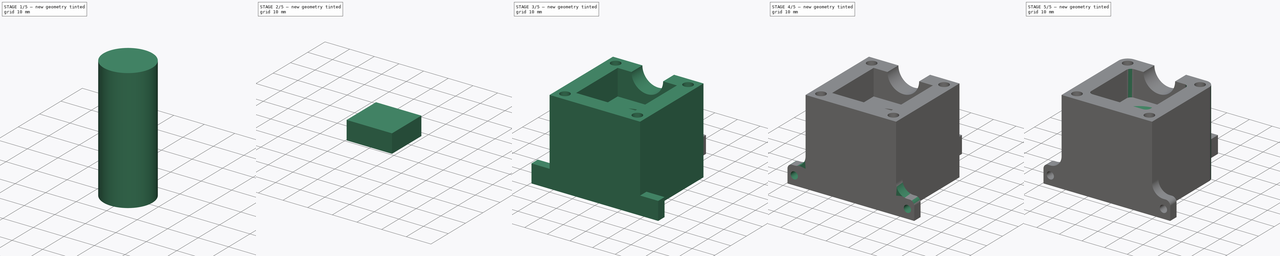
[diagram: build sequence overview — one tinted view per stage of 5, left to right]
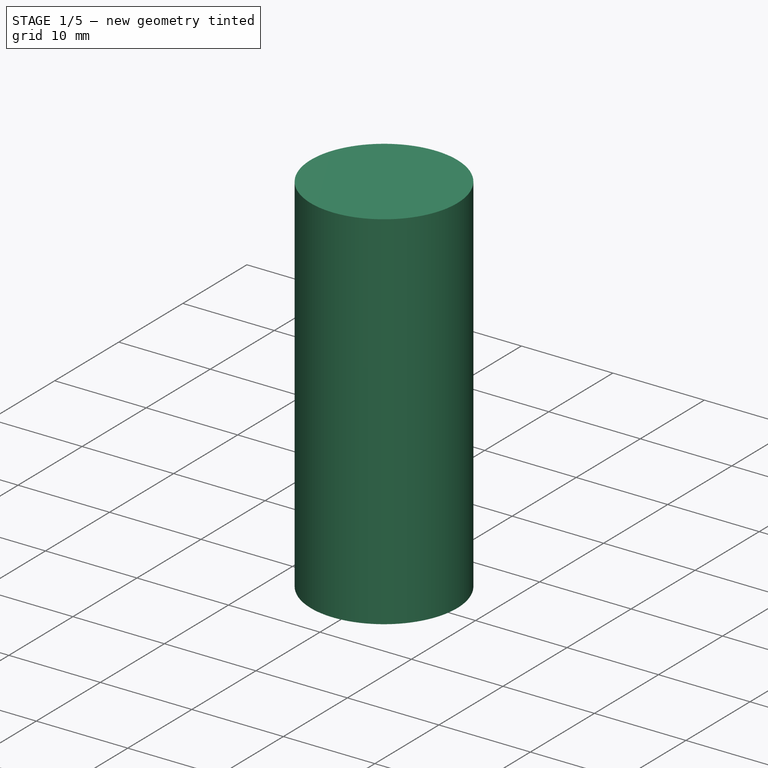
[diagram: stage 1 of 5 — iso view after this stage's code; geometry added in this stage tinted green]
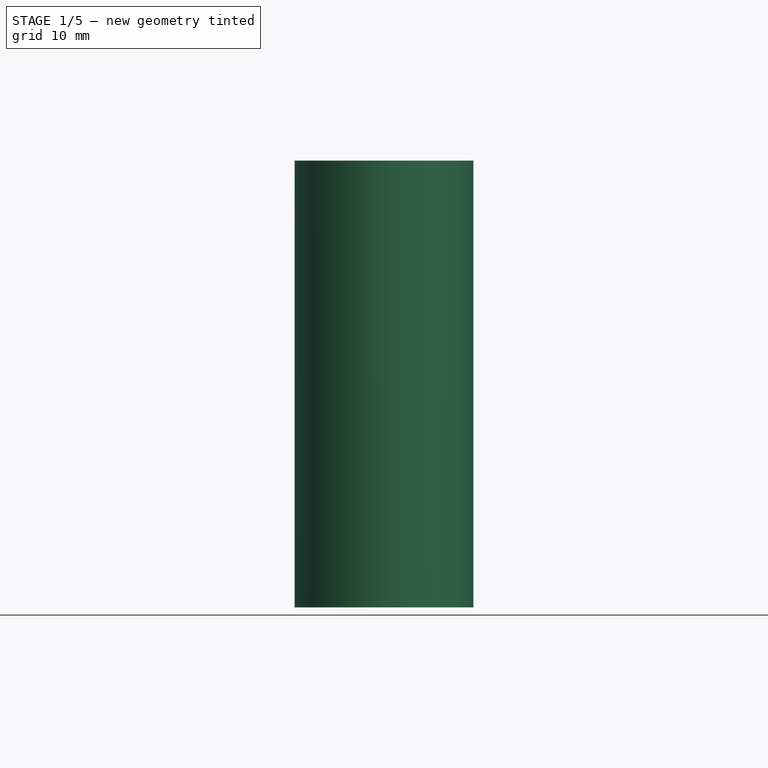
[diagram: stage 1 of 5 — front view after this stage's code; geometry added in this stage tinted green]
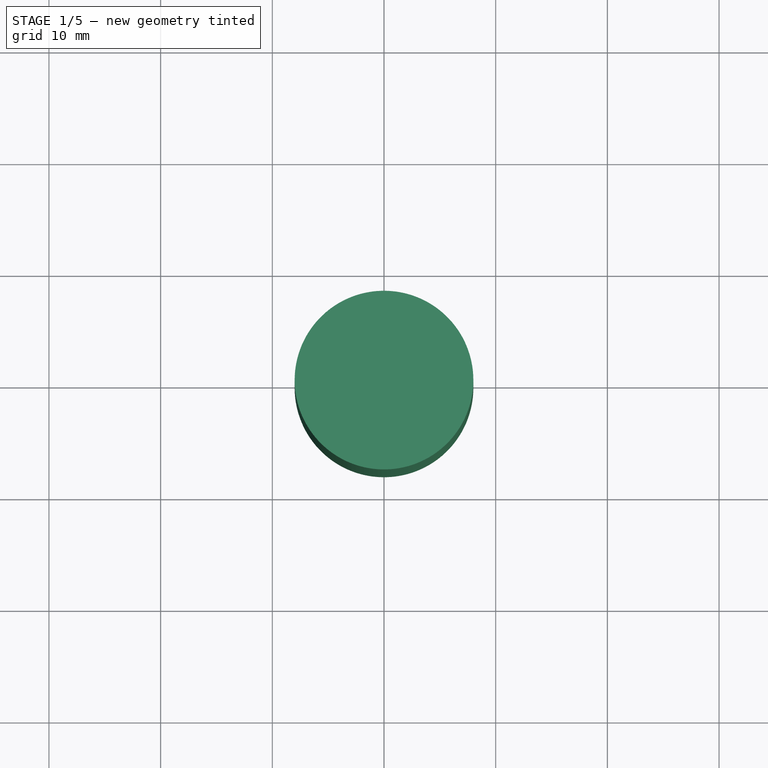
[diagram: stage 1 of 5 — top view after this stage's code; geometry added in this stage tinted green]
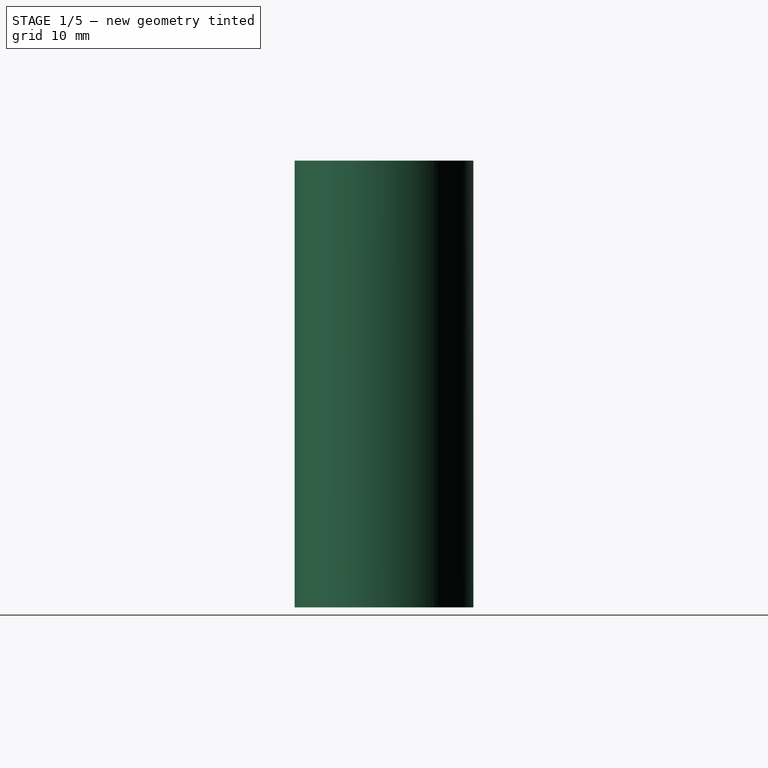
[diagram: stage 1 of 5 — right view after this stage's code; geometry added in this stage tinted green]
FCSTD DOCUMENT  (FreeCAD 0.18R4 (GitTag))
Label: housing_right
License: All rights reserved
LicenseURL: http://en.wikipedia.org/wiki/All_rights_reserved
objects: Sketcher::SketchObject×8, Part::Extrusion×8, Part::Cut×5, Part::Fillet×5, Part::MultiFuse×2, Part::Chamfer×1, Part::Feature×1
note: 30 computed .brp shape members not serialized (recipe doc carries the construction recipe); baked Part::Feature solids carry a one-line shape summary decoded from their .brp

FEATURE [Sketcher::SketchObject] Sketch
  sketch-geometry (8):
    g0: LineSegment StartX=-20 StartY=-20 StartZ=0 EndX=20 EndY=-20 EndZ=0
    g1: LineSegment StartX=20 StartY=-20 StartZ=0 EndX=20 EndY=20 EndZ=0
    g2: LineSegment StartX=20 StartY=20 StartZ=0 EndX=-20 EndY=20 EndZ=0
    g3: LineSegment StartX=-20 StartY=20 StartZ=0 EndX=-20 EndY=-20 EndZ=0
    g4: Circle CenterX=-16 CenterY=16 CenterZ=0 NormalX=0 NormalY=0 NormalZ=1 AngleXU=0 Radius=2.1
    g5: Circle CenterX=16 CenterY=16 CenterZ=0 NormalX=0 NormalY=0 NormalZ=1 AngleXU=0 Radius=2.1
    g6: Circle CenterX=16 CenterY=-16 CenterZ=0 NormalX=0 NormalY=0 NormalZ=1 AngleXU=0 Radius=2.1
    g7: Circle CenterX=-16 CenterY=-16 CenterZ=0 NormalX=0 NormalY=0 NormalZ=1 AngleXU=0 Radius=2.1
  constraints (24):
    c: Coincident(g0,g1)
    c: Coincident(g1,g2)
    c: Coincident(g2,g3)
    c: Coincident(g3,g0)
    c: Horizontal(g0)
    c: Horizontal(g2)
    c: Vertical(g1)
    c: Vertical(g3)
    c: DistanceX(g2,g2) = 40
    c: DistanceX(g2,g-1) = 20
    c: DistanceY(g3,g3) = 40
    c: DistanceY(g-1,g2) = 20
    c: Radius(g4) = 2.1
    c: Radius(g5) = 2.1
    c: Radius(g7) = 2.1
    c: Radius(g6) = 2.1
    c: DistanceX(g5,g1) = 4
    c: DistanceX(g6,g0) = 4
    c: DistanceX(g0,g7) = 4
    c: DistanceX(g2,g4) = 4
    c: DistanceY(g4,g2) = 4
    c: DistanceY(g5,g1) = 4
    c: DistanceY(g0,g6) = 4
    c: DistanceY(g0,g7) = 4
FEATURE [Part::Extrusion] Extrude
  Base = -> Sketch
  Dir = (0,0,1)
  DirMode = 2
  FaceMakerClass = Part::FaceMakerBullseye
  LengthFwd = 37.5
  LengthRev = 0
  Solid = true
  Symmetric = false
FEATURE [Sketcher::SketchObject] Sketch001
  MapMode = 5
  Placement = pos=(0,0,37.5) rot=(0,0,1;0rad)
  Support = -> [Extrude]
  sketch-geometry (4):
    g0: LineSegment StartX=-13.1 StartY=-13.1 StartZ=0 EndX=13.1 EndY=-13.1 EndZ=0
    g1: LineSegment StartX=13.1 StartY=-13.1 StartZ=0 EndX=13.1 EndY=13.1 EndZ=0
    g2: LineSegment StartX=13.1 StartY=13.1 StartZ=0 EndX=-13.1 EndY=13.1 EndZ=0
    g3: LineSegment StartX=-13.1 StartY=13.1 StartZ=0 EndX=-13.1 EndY=-13.1 EndZ=0
  constraints (12):
    c: Coincident(g0,g1)
    c: Coincident(g1,g2)
    c: Coincident(g2,g3)
    c: Coincident(g3,g0)
    c: Horizontal(g0)
    c: Horizontal(g2)
    c: Vertical(g1)
    c: Vertical(g3)
    c: DistanceX(g2,g2) = 26.2
    c: DistanceX(g-1,g1) = 13.1
    c: DistanceY(g1,g1) = 26.2
    c: DistanceY(g0,g-1) = 13.1
FEATURE [Part::Extrusion] Extrude001
  Base = -> Sketch001
  Dir = (0,0,1)
  DirMode = 2
  FaceMakerClass = Part::FaceMakerBullseye
  LengthFwd = 11.4
  LengthRev = 0
  Reversed = true
  Solid = true
  Symmetric = false
FEATURE [Part::Cut] Cut
  Base = -> Extrude
  Tool = -> Extrude001
FEATURE [Sketcher::SketchObject] Sketch002
  MapMode = 5
  Placement = pos=(0,0,26.1) rot=(0,0,1;0rad)
  Support = -> [Cut]
  sketch-geometry (1):
    g0: Circle CenterX=0 CenterY=0 CenterZ=0 NormalX=0 NormalY=0 NormalZ=1 AngleXU=0 Radius=8
  constraints (2):
    c: Coincident(g0,g-1)
    c: Radius(g0) = 8
FEATURE [Part::Extrusion] Extrude002
  Base = -> Sketch002
  Dir = (0,0,1)
  DirMode = 2
  FaceMakerClass = Part::FaceMakerBullseye
  LengthFwd = 40
  LengthRev = 0
  Reversed = true
  Solid = true
  Symmetric = false
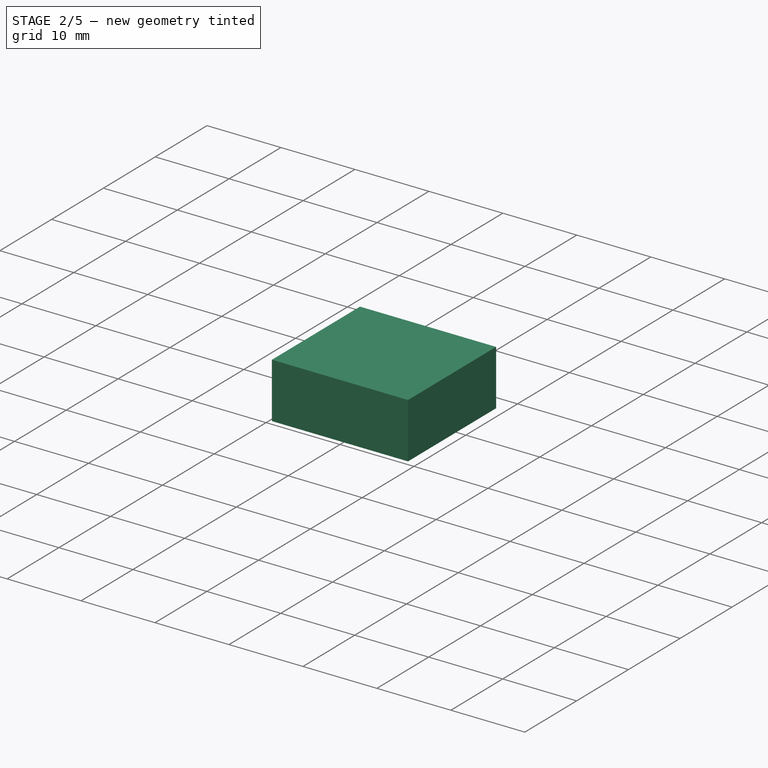
[diagram: stage 2 of 5 — iso view after this stage's code; geometry added in this stage tinted green]
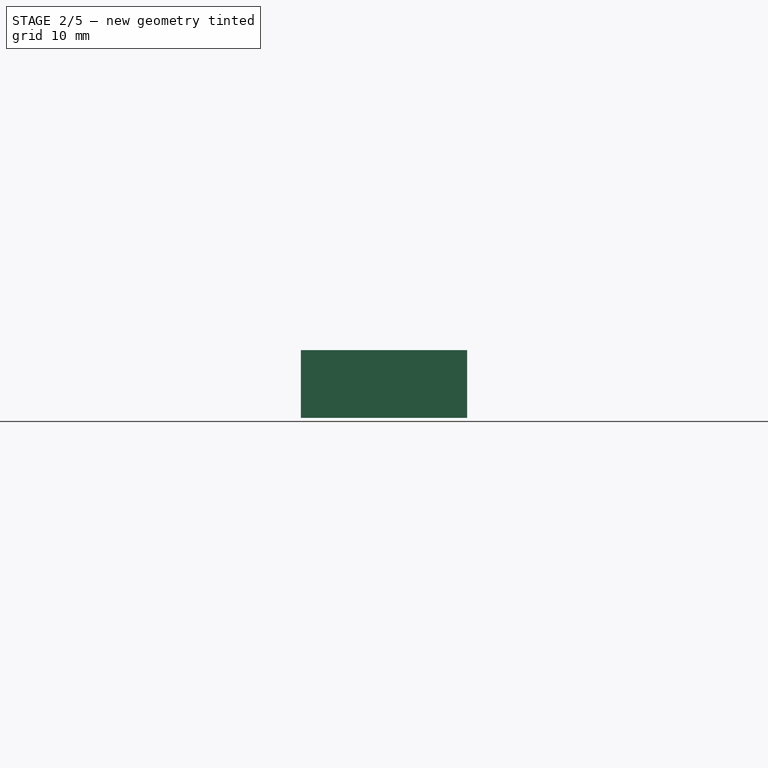
[diagram: stage 2 of 5 — front view after this stage's code; geometry added in this stage tinted green]
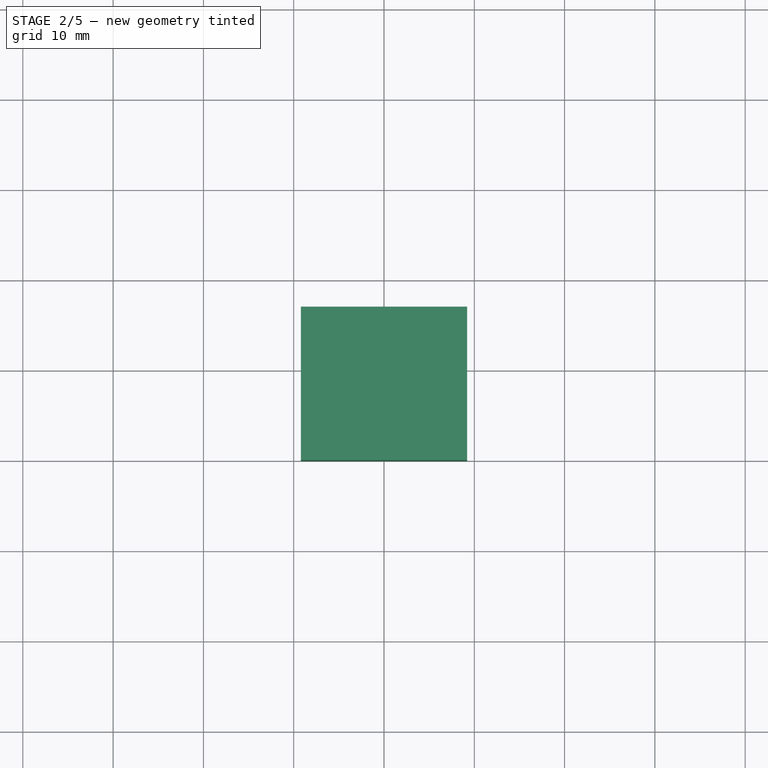
[diagram: stage 2 of 5 — top view after this stage's code; geometry added in this stage tinted green]
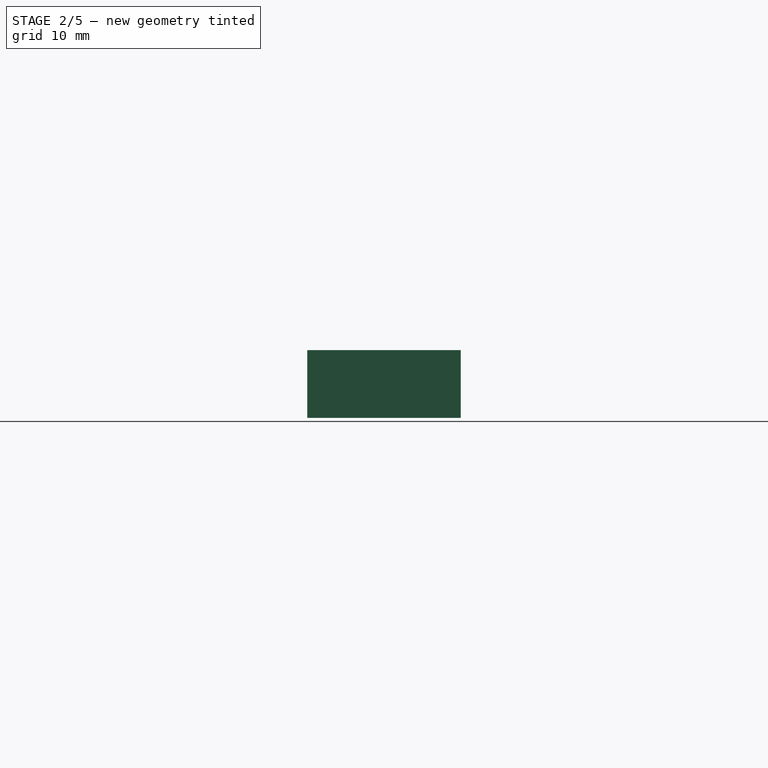
[diagram: stage 2 of 5 — right view after this stage's code; geometry added in this stage tinted green]
FEATURE [Part::Cut] Cut001
  Base = -> Cut
  Tool = -> Extrude002
FEATURE [Sketcher::SketchObject] Sketch003
  MapMode = 5
  Placement = pos=(0,20,0) rot=(0,0.707107,0.707107;3.14159rad)
  Support = -> [Cut001]
  sketch-geometry (1):
    g0: Circle CenterX=0 CenterY=37.5 CenterZ=0 NormalX=0 NormalY=0 NormalZ=1 AngleXU=0 Radius=7
  constraints (3):
    c: Radius(g0) = 7
    c: PointOnObject(g0,g-2)
    c: DistanceY(g-1,g0) = 37.5
FEATURE [Part::Extrusion] Extrude003
  Base = -> Sketch003
  Dir = (0,1,-2e-16)
  DirMode = 2
  FaceMakerClass = Part::FaceMakerBullseye
  LengthFwd = 10
  LengthRev = 0
  Reversed = true
  Solid = true
  Symmetric = false
FEATURE [Part::Cut] Cut002
  Base = -> Cut001
  Tool = -> Extrude003
FEATURE [Sketcher::SketchObject] Sketch004
  MapMode = 5
  Placement = pos=(0,0,0) rot=(1,0,0;3.14159rad)
  Support = -> [Cut002]
  sketch-geometry (4):
    g0: LineSegment StartX=-9.2 StartY=-20 StartZ=0 EndX=9.2 EndY=-20 EndZ=0
    g1: LineSegment StartX=9.2 StartY=-20 StartZ=0 EndX=9.2 EndY=-37 EndZ=0
    g2: LineSegment StartX=9.2 StartY=-37 StartZ=0 EndX=-9.2 EndY=-37 EndZ=0
    g3: LineSegment StartX=-9.2 StartY=-37 StartZ=0 EndX=-9.2 EndY=-20 EndZ=0
  constraints (12):
    c: Coincident(g0,g1)
    c: Coincident(g1,g2)
    c: Coincident(g2,g3)
    c: Coincident(g3,g0)
    c: Horizontal(g0)
    c: Horizontal(g2)
    c: Vertical(g1)
    c: Vertical(g3)
    c: DistanceY(g1,g1) = 17
    c: DistanceY(g0,g-1) = 20
    c: DistanceX(g2,g2) = 18.4
    c: DistanceX(g-1,g0) = 9.2
FEATURE [Part::Extrusion] Extrude004
  Base = -> Sketch004
  Dir = (0,0,-1)
  DirMode = 2
  FaceMakerClass = Part::FaceMakerBullseye
  LengthFwd = 7.5
  LengthRev = 0
  Reversed = true
  Solid = true
  Symmetric = false
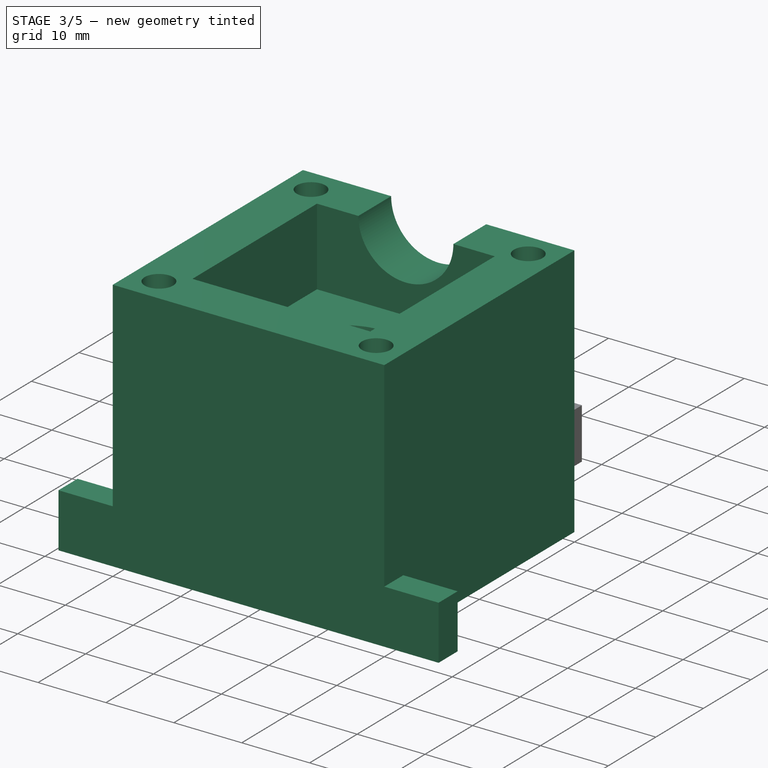
[diagram: stage 3 of 5 — iso view after this stage's code; geometry added in this stage tinted green]
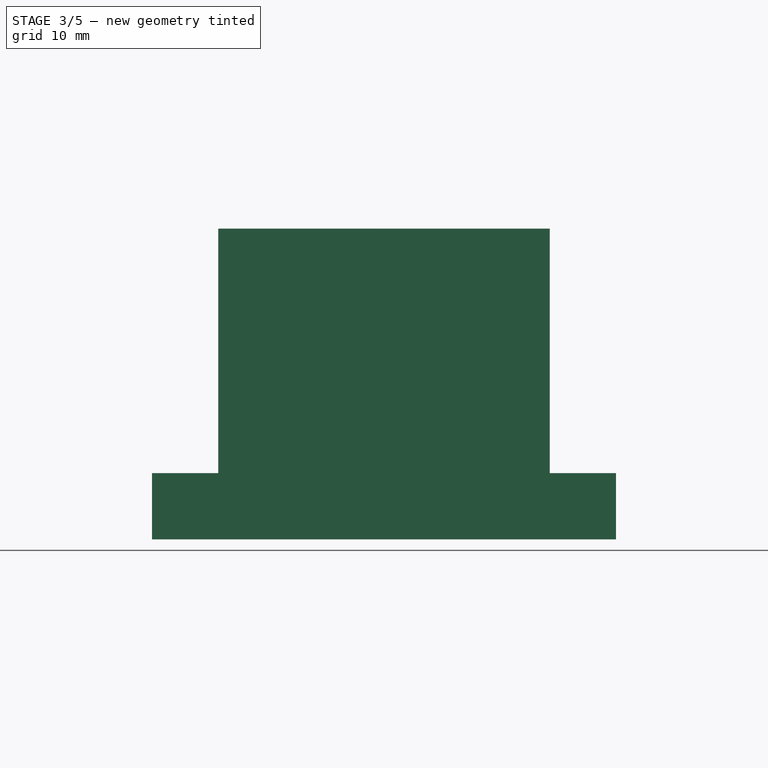
[diagram: stage 3 of 5 — front view after this stage's code; geometry added in this stage tinted green]
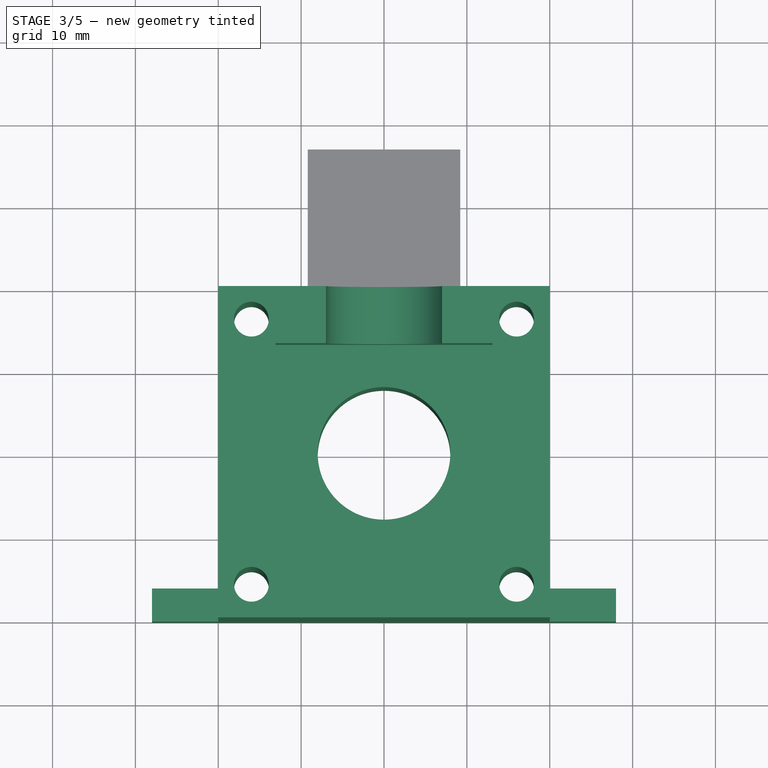
[diagram: stage 3 of 5 — top view after this stage's code; geometry added in this stage tinted green]
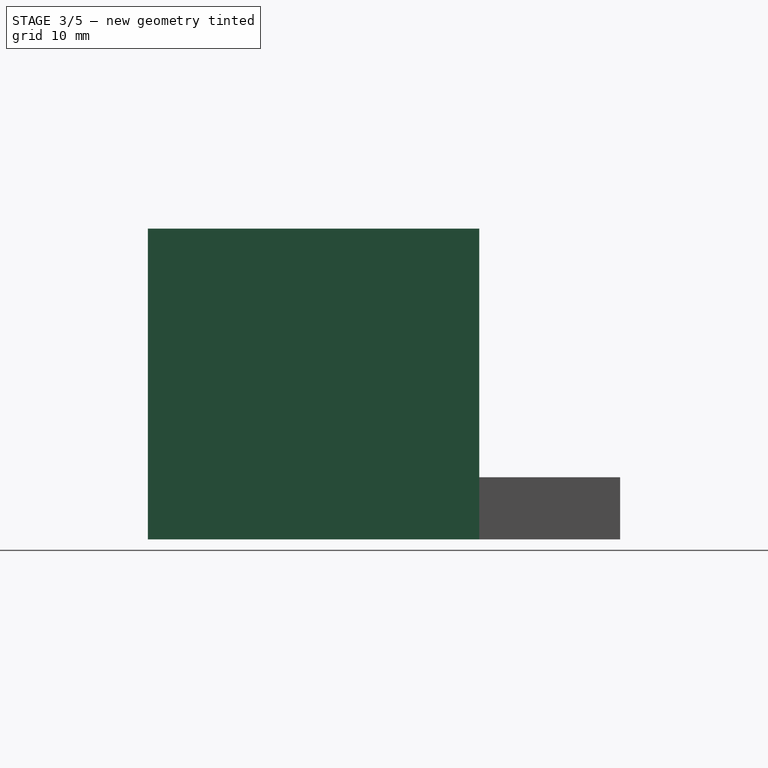
[diagram: stage 3 of 5 — right view after this stage's code; geometry added in this stage tinted green]
FEATURE [Sketcher::SketchObject] Sketch005
  MapMode = 5
  Placement = pos=(0,37,0) rot=(0,0.707107,0.707107;3.14159rad)
  Support = -> [Extrude004]
  sketch-geometry (2):
    g0: Circle CenterX=-4.7 CenterY=3.5 CenterZ=0 NormalX=0 NormalY=0 NormalZ=1 AngleXU=0 Radius=0.9
    g1: Circle CenterX=4.7 CenterY=3.5 CenterZ=0 NormalX=0 NormalY=0 NormalZ=1 AngleXU=0 Radius=0.9
  constraints (6):
    c: DistanceX(g0,g1) = 9.4
    c: DistanceX(g-1,g1) = 4.7
    c: DistanceY(g1,g0) = 0
    c: DistanceY(g-1,g1) = 3.5
    c: Radius(g0) = 0.9
    c: Radius(g1) = 0.9
FEATURE [Part::Extrusion] Extrude005
  Base = -> Sketch005
  Dir = (0,1,-2e-16)
  DirMode = 2
  FaceMakerClass = Part::FaceMakerBullseye
  LengthFwd = 8
  LengthRev = 0
  Reversed = true
  Solid = true
  Symmetric = false
FEATURE [Part::MultiFuse] Fusion
  Shapes = -> [Extrude004,Cut002]
FEATURE [Part::Cut] Cut003
  Base = -> Fusion
  Tool = -> Extrude005
FEATURE [Sketcher::SketchObject] Sketch006
  MapMode = 5
  Placement = pos=(0,0,0) rot=(1,0,0;3.14159rad)
  Support = -> [Cut003]
  sketch-geometry (8):
    g0: LineSegment StartX=-28 StartY=16 StartZ=0 EndX=-20 EndY=16 EndZ=0
    g1: LineSegment StartX=-20 StartY=16 StartZ=0 EndX=-20 EndY=20 EndZ=0
    g2: LineSegment StartX=-20 StartY=20 StartZ=0 EndX=-28 EndY=20 EndZ=0
    g3: LineSegment StartX=-28 StartY=20 StartZ=0 EndX=-28 EndY=16 EndZ=0
    g4: LineSegment StartX=28 StartY=16 StartZ=0 EndX=20 EndY=16 EndZ=0
    g5: LineSegment StartX=20 StartY=16 StartZ=0 EndX=20 EndY=20 EndZ=0
    g6: LineSegment StartX=20 StartY=20 StartZ=0 EndX=28 EndY=20 EndZ=0
    g7: LineSegment StartX=28 StartY=20 StartZ=0 EndX=28 EndY=16 EndZ=0
  constraints (24):
    c: Coincident(g0,g1)
    c: Coincident(g1,g2)
    c: Coincident(g2,g3)
    c: Coincident(g3,g0)
    c: Horizontal(g0)
    c: Horizontal(g2)
    c: Vertical(g1)
    c: Vertical(g3)
    c: DistanceX(g2,g2) = 8
    c: DistanceY(g3,g3) = 4
    c: DistanceY(g-1,g0) = 16
    c: DistanceX(g0,g-1) = 20
    c: Coincident(g4,g5)
    c: Coincident(g5,g6)
    c: Coincident(g6,g7)
    c: Coincident(g7,g4)
    c: Horizontal(g4)
    c: Horizontal(g6)
    c: Vertical(g5)
    c: Vertical(g7)
    c: DistanceX(g6,g6) = 8
    c: DistanceY(g7,g7) = 4
    c: DistanceY(g-1,g4) = 16
    c: DistanceX(g-1,g5) = 20
FEATURE [Part::Extrusion] Extrude006
  Base = -> Sketch006
  Dir = (0,0,-1)
  DirMode = 2
  FaceMakerClass = Part::FaceMakerBullseye
  LengthFwd = 8
  LengthRev = 0
  Reversed = true
  Solid = true
  Symmetric = false
FEATURE [Part::MultiFuse] Fusion001
  Shapes = -> [Cut003,Extrude006]
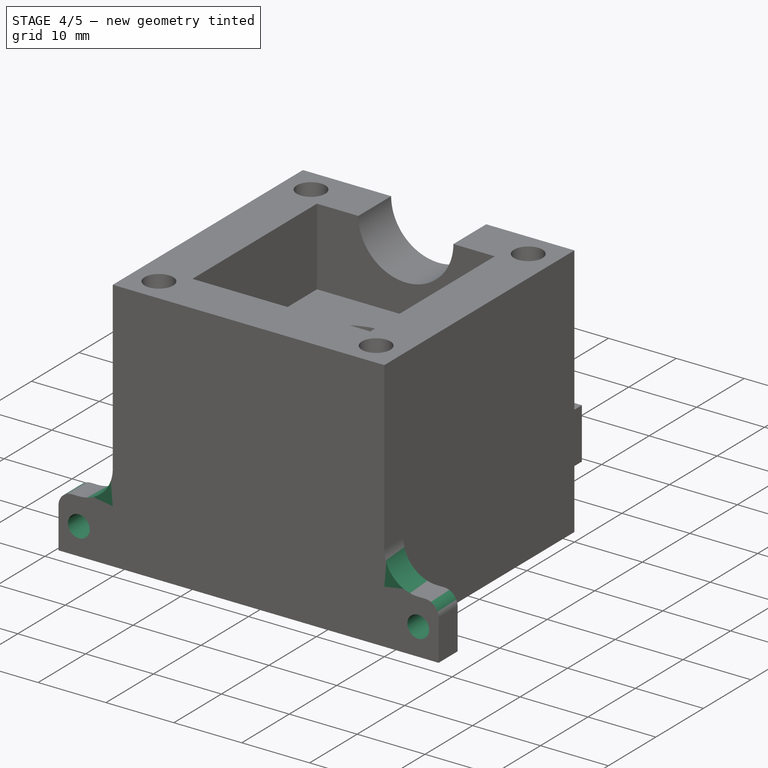
[diagram: stage 4 of 5 — iso view after this stage's code; geometry added in this stage tinted green]
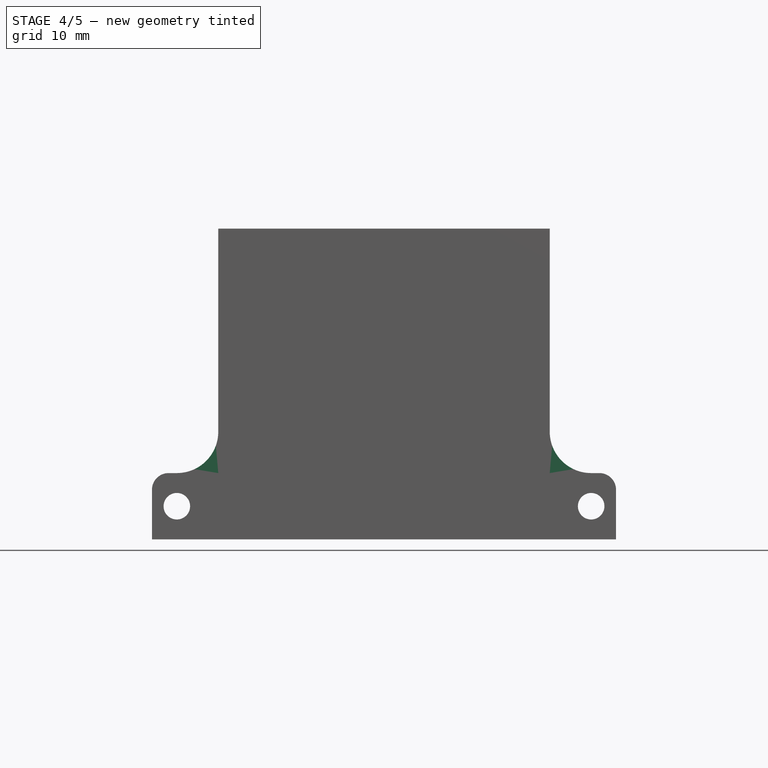
[diagram: stage 4 of 5 — front view after this stage's code; geometry added in this stage tinted green]
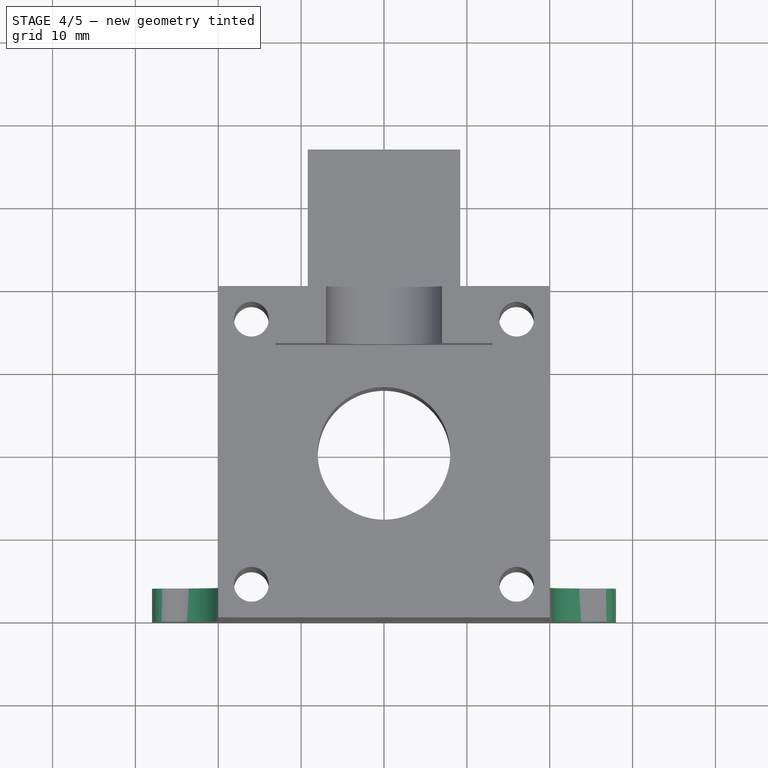
[diagram: stage 4 of 5 — top view after this stage's code; geometry added in this stage tinted green]
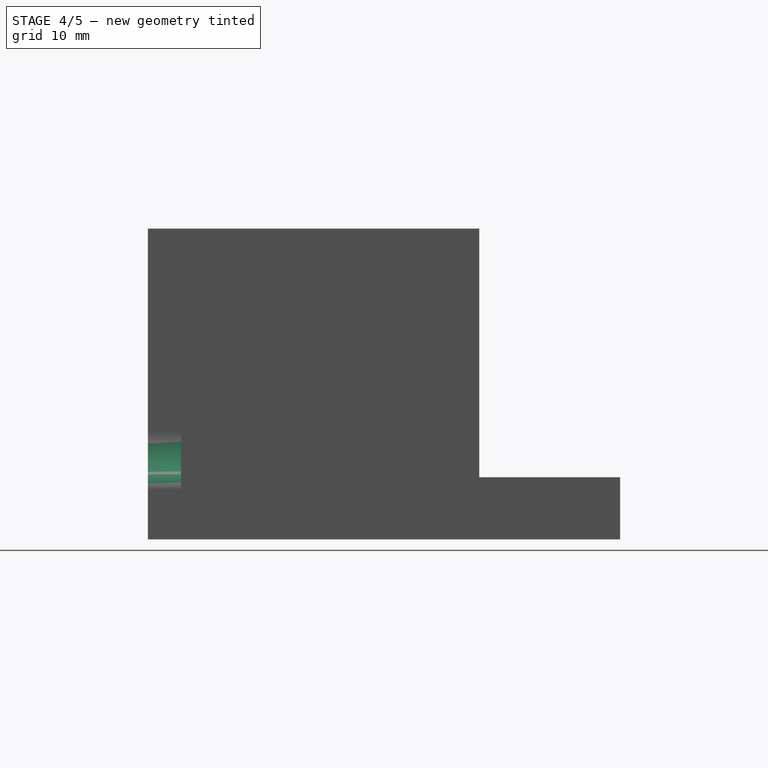
[diagram: stage 4 of 5 — right view after this stage's code; geometry added in this stage tinted green]
FEATURE [Part::Fillet] Fillet
  Base = -> Fusion001
  Edges = 2 edges r=5: [Edge12,Edge18]
FEATURE [Sketcher::SketchObject] Sketch007
  MapMode = 5
  Placement = pos=(0,-16,0) rot=(0,0.707107,0.707107;3.14159rad)
  Support = -> [Fillet]
  sketch-geometry (2):
    g0: Circle CenterX=-25 CenterY=4 CenterZ=0 NormalX=0 NormalY=0 NormalZ=1 AngleXU=0 Radius=1.6
    g1: Circle CenterX=25 CenterY=4 CenterZ=0 NormalX=0 NormalY=0 NormalZ=1 AngleXU=0 Radius=1.6
  constraints (6):
    c: Radius(g0) = 1.6
    c: Radius(g1) = 1.6
    c: DistanceY(g1,g0) = 0
    c: DistanceX(g0,g1) = 50
    c: DistanceX(g-1,g1) = 25
    c: DistanceY(g-1,g1) = 4
FEATURE [Part::Extrusion] Extrude007
  Base = -> Sketch007
  Dir = (0,1,-2e-16)
  DirMode = 2
  FaceMakerClass = Part::FaceMakerBullseye
  LengthFwd = 10
  LengthRev = 0
  Reversed = true
  Solid = true
  Symmetric = false
FEATURE [Part::Cut] Cut004
  Base = -> Fillet
  Tool = -> Extrude007
FEATURE [Part::Fillet] Fillet001
  Base = -> Cut004
  Edges = 2 edges r=2: [Edge64,Edge92]
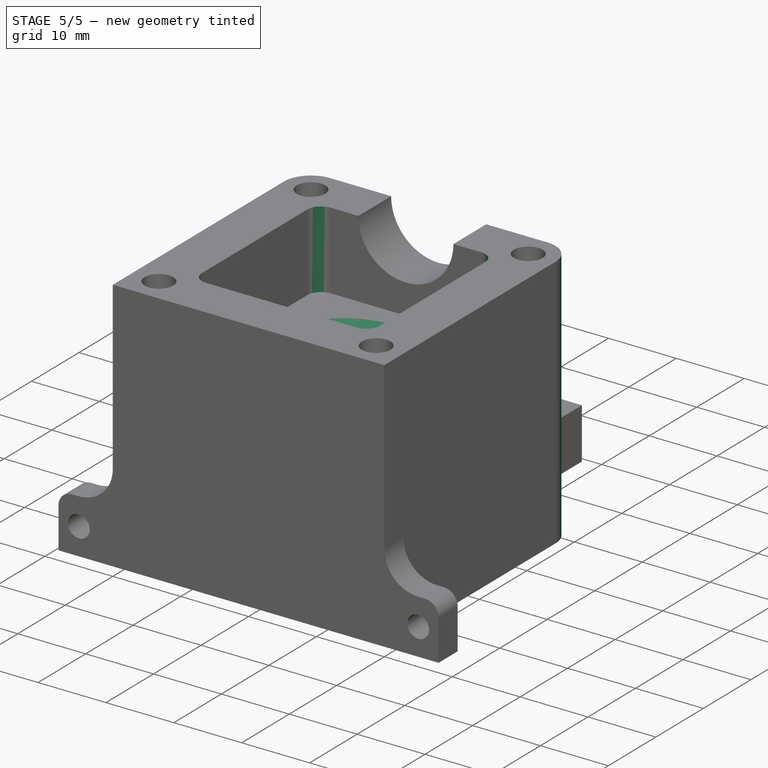
[diagram: stage 5 of 5 — iso view after this stage's code; geometry added in this stage tinted green]
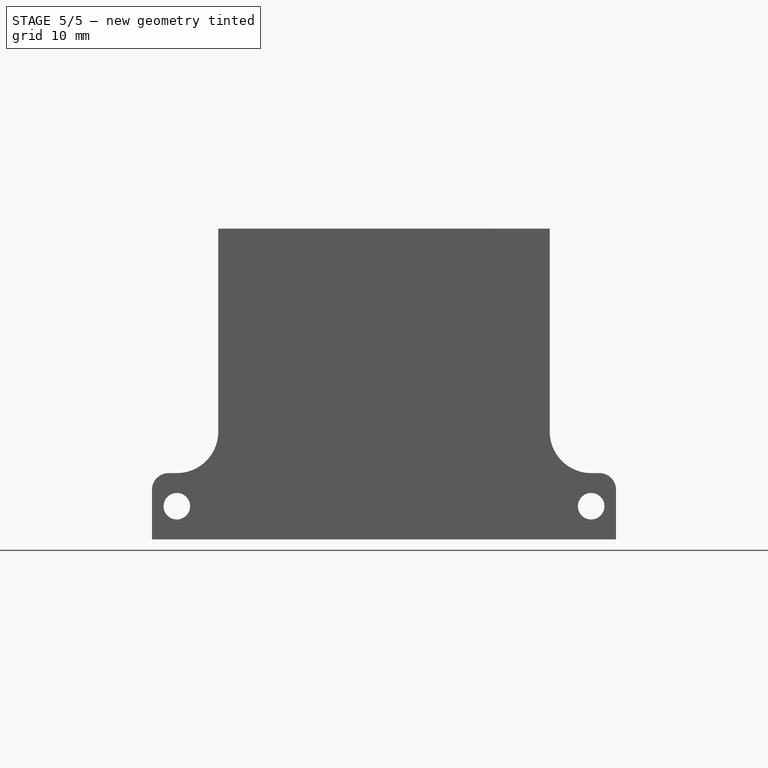
[diagram: stage 5 of 5 — front view after this stage's code; geometry added in this stage tinted green]
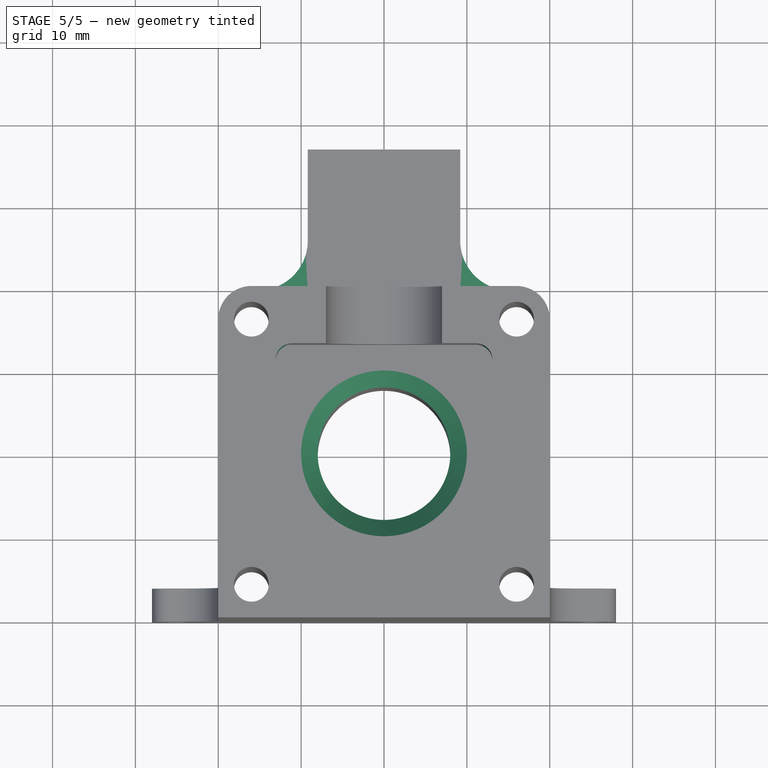
[diagram: stage 5 of 5 — top view after this stage's code; geometry added in this stage tinted green]
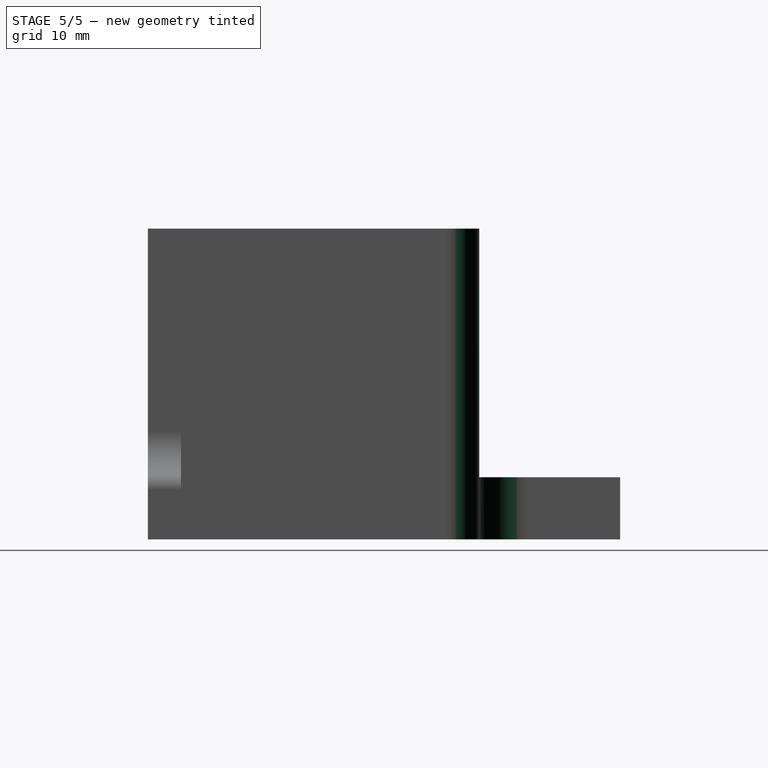
[diagram: stage 5 of 5 — right view after this stage's code; geometry added in this stage tinted green]
FEATURE [Part::Fillet] Fillet002
  Base = -> Fillet001
  Edges = 2 edges r=6: [Edge67,Edge69]
FEATURE [Part::Chamfer] Chamfer
  Base = -> Fillet002
  Edges = 1 edges r=2: [Edge54]
FEATURE [Part::Fillet] Fillet003
  Base = -> Chamfer
  Edges = 2 edges r=4: [Edge25,Edge33]
FEATURE [Part::Fillet] Fillet004
  Base = -> Fillet003
  Edges = 4 edges r=2: [Edge113,Edge115,Edge116,Edge118]
FEATURE [Part::Feature] Fillet004001  label="Fillet005"
  shape: bbox 56 x 57 x 37.5 mm, 46 faces (baked)
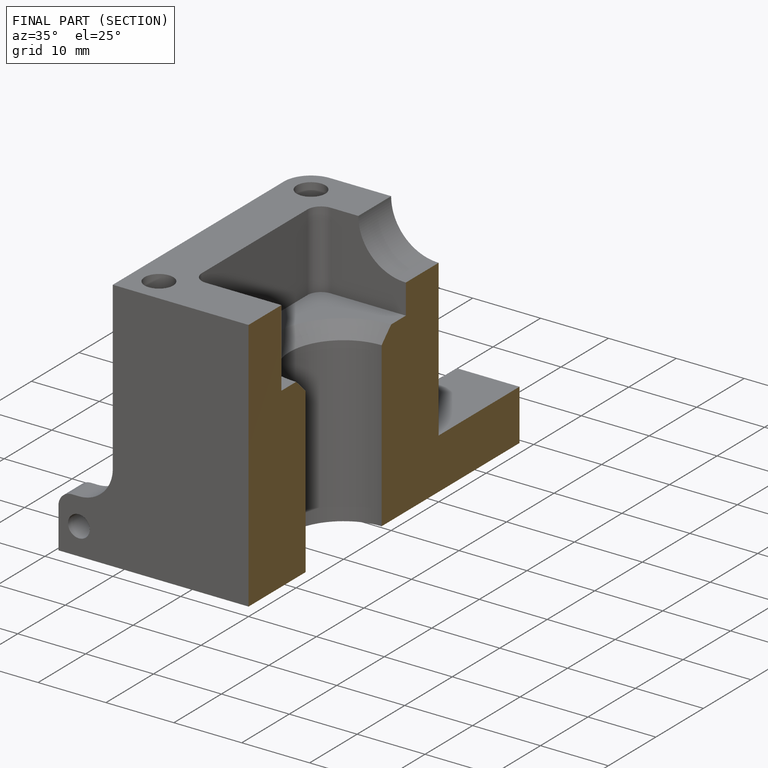
[diagram: finished part — half-section view (interior)]
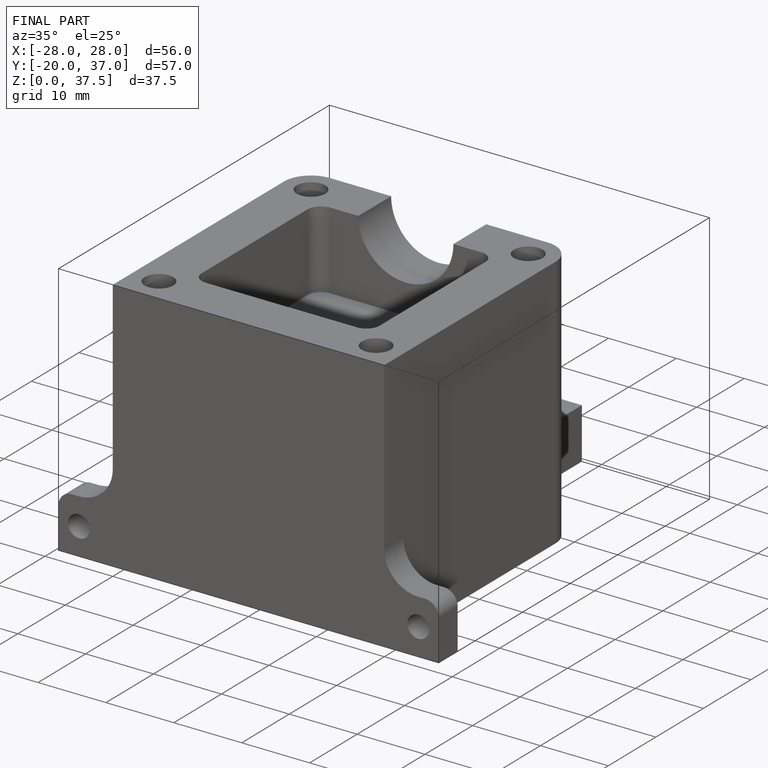
[diagram: finished part — iso view with bounding-box wireframe]
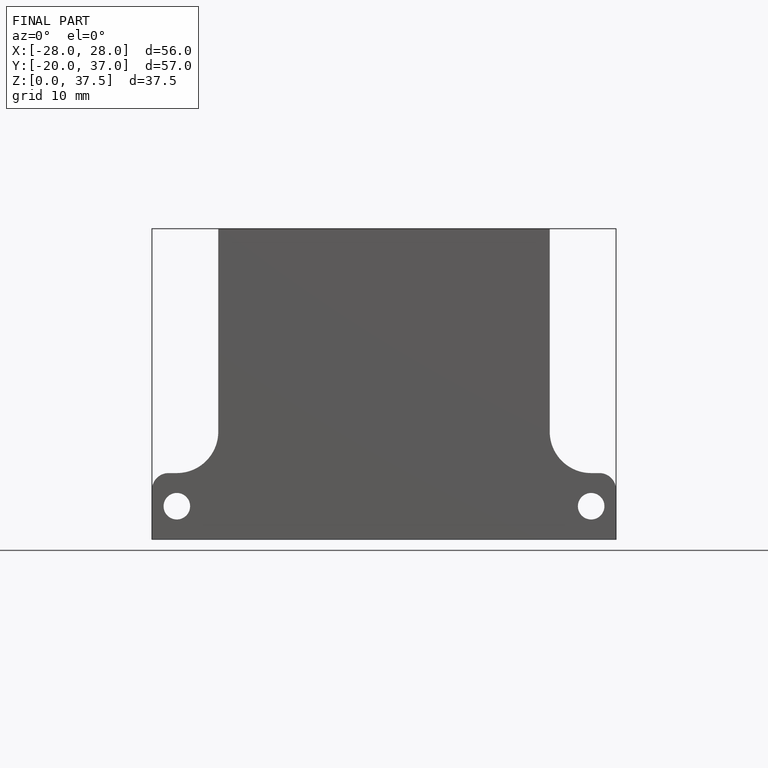
[diagram: finished part — front view with bounding-box wireframe]
